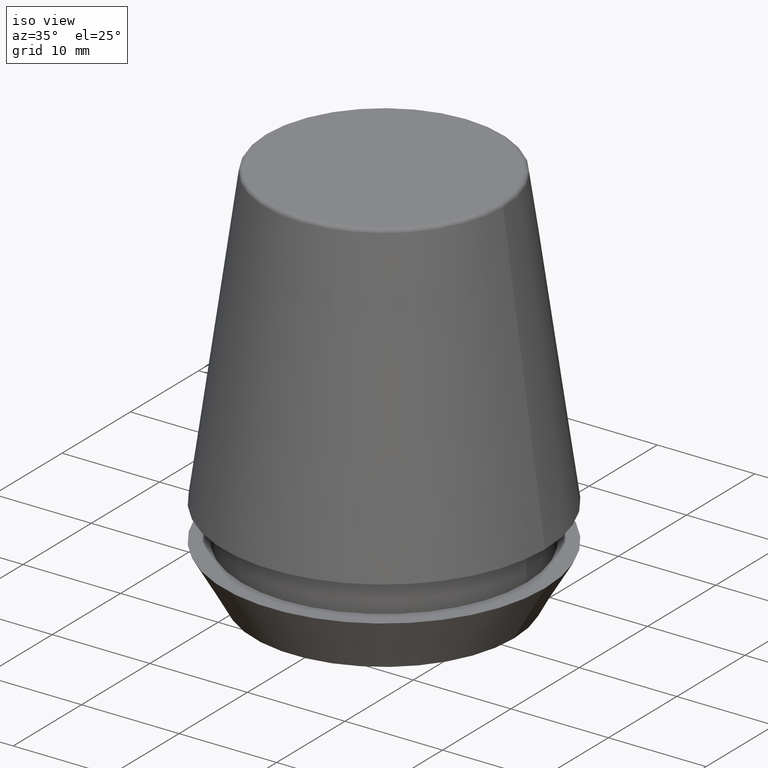
[diagram: clean part render]
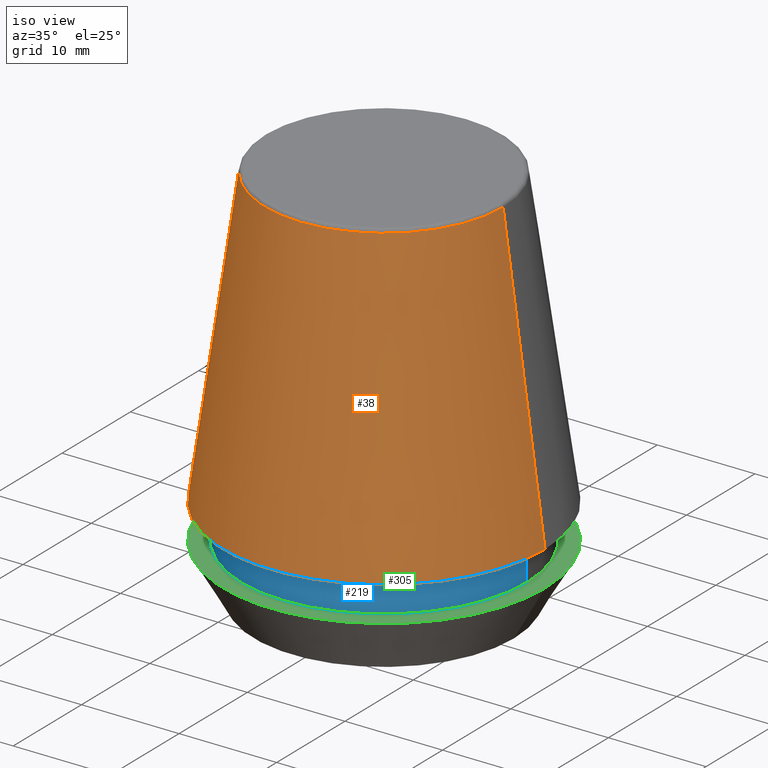
[diagram: same view with three faces highlighted in distinct colors, each labeled with its STEP entity id]
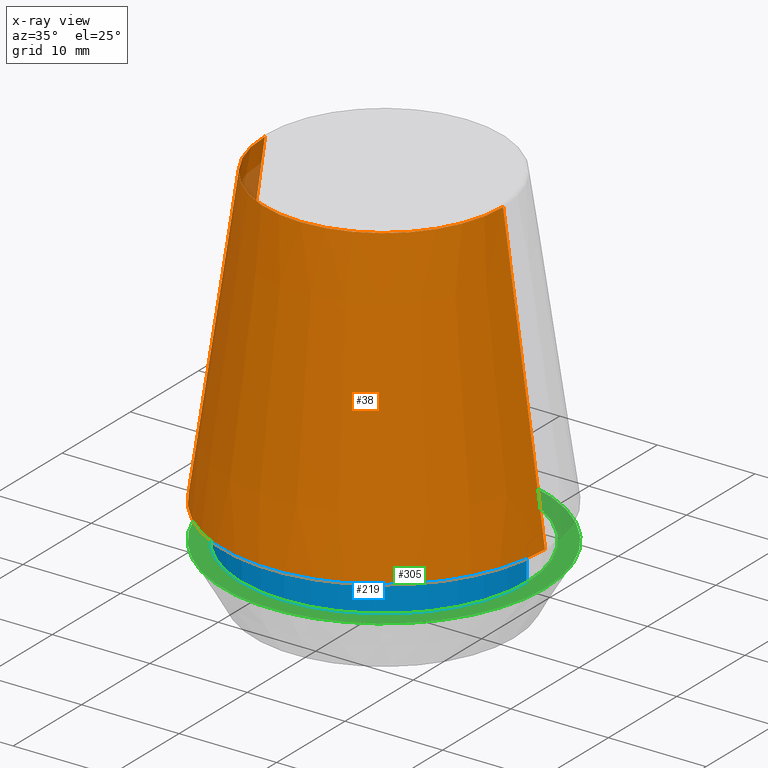
[diagram: x-ray of the same camera — body ghosted, the three highlighted faces saturated]
A machine part, iso view with three faces highlighted in distinct colors.
The next image is the same camera in x-ray (body ghosted, the three faces saturated) — at least one of them is partly hidden behind the body in this view.
Their STEP definitions:

[orange] entity #38 — the highlighted conical surface has half-angle 8 deg.
#8 = ORIENTED_EDGE ( 'NONE', *, *, #48, .T. ) ;
#16 = CIRCLE ( 'NONE', #101, 12.20600611160694300 ) ;
#21 = VERTEX_POINT ( 'NONE', #42 ) ;
#37 = DIRECTION ( 'NONE',  ( 0.0000000000000000000, 0.0000000000000000000, -1.000000000000000000 ) ) ;
#38 = ADVANCED_FACE ( 'NONE', ( #273 ), #384, .T. ) ;
#42 = CARTESIAN_POINT ( 'NONE',  ( -12.20600611160694300, 0.0000000000000000000, 39.65566924038402900 ) ) ;
#48 = EDGE_CURVE ( 'NONE', #278, #261, #56, .T. ) ;
#56 = CIRCLE ( 'NONE', #182, 16.50032537154048700 ) ;
#59 = CARTESIAN_POINT ( 'NONE',  ( 16.50032537154048700, 2.020707065114692300E-015, 9.099999999999997900 ) ) ;
#83 = VECTOR ( 'NONE', #350, 1000.000000000000000 ) ;
#89 = VECTOR ( 'NONE', #154, 1000.000000000000000 ) ;
#94 = CARTESIAN_POINT ( 'NONE',  ( 16.50032537154048700, 2.020707065114692300E-015, 9.099999999999997900 ) ) ;
#100 = LINE ( 'NONE', #251, #83 ) ;
#101 = AXIS2_PLACEMENT_3D ( 'NONE', #102, #234, #344 ) ;
#102 = CARTESIAN_POINT ( 'NONE',  ( 0.0000000000000000000, 0.0000000000000000000, 39.65566924038402900 ) ) ;
#130 = VERTEX_POINT ( 'NONE', #352 ) ;
#154 = DIRECTION ( 'NONE',  ( 0.1391731009600586900, 1.704378926181473100E-017, -0.9902680687415712500 ) ) ;
#182 = AXIS2_PLACEMENT_3D ( 'NONE', #307, #275, #355 ) ;
#190 = DIRECTION ( 'NONE',  ( -1.000000000000000000, 0.0000000000000000000, 0.0000000000000000000 ) ) ;
#196 = LINE ( 'NONE', #94, #89 ) ;
#199 = EDGE_LOOP ( 'NONE', ( #255, #224, #329, #8 ) ) ;
#201 = EDGE_CURVE ( 'NONE', #130, #261, #196, .T. ) ;
#221 = CARTESIAN_POINT ( 'NONE',  ( 0.0000000000000000000, 0.0000000000000000000, 9.099999999999997900 ) ) ;
#224 = ORIENTED_EDGE ( 'NONE', *, *, #258, .F. ) ;
#234 = DIRECTION ( 'NONE',  ( -0.0000000000000000000, -0.0000000000000000000, 1.000000000000000000 ) ) ;
#251 = CARTESIAN_POINT ( 'NONE',  ( -16.50032537154048700, 0.0000000000000000000, 9.099999999999997900 ) ) ;
#253 = AXIS2_PLACEMENT_3D ( 'NONE', #221, #37, #190 ) ;
#255 = ORIENTED_EDGE ( 'NONE', *, *, #201, .F. ) ;
#258 = EDGE_CURVE ( 'NONE', #21, #130, #16, .T. ) ;
#261 = VERTEX_POINT ( 'NONE', #59 ) ;
#273 = FACE_OUTER_BOUND ( 'NONE', #199, .T. ) ;
#275 = DIRECTION ( 'NONE',  ( -0.0000000000000000000, -0.0000000000000000000, 1.000000000000000000 ) ) ;
#278 = VERTEX_POINT ( 'NONE', #311 ) ;
#307 = CARTESIAN_POINT ( 'NONE',  ( 0.0000000000000000000, 0.0000000000000000000, 9.099999999999997900 ) ) ;
#311 = CARTESIAN_POINT ( 'NONE',  ( -16.50032537154048700, 0.0000000000000000000, 9.099999999999997900 ) ) ;
#329 = ORIENTED_EDGE ( 'NONE', *, *, #375, .T. ) ;
#344 = DIRECTION ( 'NONE',  ( 1.000000000000000000, 0.0000000000000000000, 0.0000000000000000000 ) ) ;
#350 = DIRECTION ( 'NONE',  ( -0.1391731009600586900, 0.0000000000000000000, -0.9902680687415712500 ) ) ;
#352 = CARTESIAN_POINT ( 'NONE',  ( 12.20600611160694300, 1.757755848304969800E-015, 39.65566924038402900 ) ) ;
#355 = DIRECTION ( 'NONE',  ( 1.000000000000000000, 0.0000000000000000000, 0.0000000000000000000 ) ) ;
#375 = EDGE_CURVE ( 'NONE', #21, #278, #100, .T. ) ;
#384 = CONICAL_SURFACE ( 'NONE', #253, 16.50032537154048700, 0.1396263401595395900 ) ;

[blue] entity #219 — the highlighted cylindrical surface (partial cylindrical patch) has radius 14.6 mm, axis along (-0, -0, 1).
#10 = VECTOR ( 'NONE', #267, 1000.000000000000000 ) ;
#17 = VECTOR ( 'NONE', #297, 1000.000000000000000 ) ;
#27 = DIRECTION ( 'NONE',  ( 1.000000000000000000, 0.0000000000000000000, 0.0000000000000000000 ) ) ;
#28 = CYLINDRICAL_SURFACE ( 'NONE', #239, 14.60000000000000000 ) ;
#30 = ORIENTED_EDGE ( 'NONE', *, *, #315, .F. ) ;
#31 = AXIS2_PLACEMENT_3D ( 'NONE', #383, #357, #213 ) ;
#32 = CIRCLE ( 'NONE', #362, 14.60000000000000000 ) ;
#36 = ORIENTED_EDGE ( 'NONE', *, *, #172, .T. ) ;
#40 = FACE_OUTER_BOUND ( 'NONE', #132, .T. ) ;
#46 = ORIENTED_EDGE ( 'NONE', *, *, #198, .T. ) ;
#52 = LINE ( 'NONE', #339, #10 ) ;
#63 = CARTESIAN_POINT ( 'NONE',  ( 14.60000000000000000, 0.0000000000000000000, 9.099999999999997900 ) ) ;
#107 = CARTESIAN_POINT ( 'NONE',  ( 14.60000000000000000, 0.0000000000000000000, 5.500000000000005300 ) ) ;
#117 = CIRCLE ( 'NONE', #31, 14.60000000000000000 ) ;
#118 = LINE ( 'NONE', #183, #17 ) ;
#119 = VERTEX_POINT ( 'NONE', #107 ) ;
#121 = VERTEX_POINT ( 'NONE', #242 ) ;
#131 = VERTEX_POINT ( 'NONE', #63 ) ;
#132 = EDGE_LOOP ( 'NONE', ( #30, #36, #46, #289 ) ) ;
#145 = EDGE_CURVE ( 'NONE', #158, #131, #117, .T. ) ;
#147 = CARTESIAN_POINT ( 'NONE',  ( 0.0000000000000000000, 0.0000000000000000000, 101.8074564848000400 ) ) ;
#158 = VERTEX_POINT ( 'NONE', #214 ) ;
#172 = EDGE_CURVE ( 'NONE', #121, #119, #32, .T. ) ;
#179 = DIRECTION ( 'NONE',  ( 1.000000000000000000, 0.0000000000000000000, 0.0000000000000000000 ) ) ;
#183 = CARTESIAN_POINT ( 'NONE',  ( -14.60000000000000000, 1.787984326755135800E-015, 101.8074564848000400 ) ) ;
#198 = EDGE_CURVE ( 'NONE', #119, #131, #52, .T. ) ;
#213 = DIRECTION ( 'NONE',  ( 1.000000000000000000, 0.0000000000000000000, 0.0000000000000000000 ) ) ;
#214 = CARTESIAN_POINT ( 'NONE',  ( -14.60000000000000000, 1.787984326755135800E-015, 9.099999999999997900 ) ) ;
#219 = ADVANCED_FACE ( 'NONE', ( #40 ), #28, .T. ) ;
#238 = DIRECTION ( 'NONE',  ( -0.0000000000000000000, -0.0000000000000000000, 1.000000000000000000 ) ) ;
#239 = AXIS2_PLACEMENT_3D ( 'NONE', #147, #263, #179 ) ;
#242 = CARTESIAN_POINT ( 'NONE',  ( -14.60000000000000000, 1.787984326755135800E-015, 5.500000000000005300 ) ) ;
#259 = CARTESIAN_POINT ( 'NONE',  ( 0.0000000000000000000, 0.0000000000000000000, 5.500000000000005300 ) ) ;
#263 = DIRECTION ( 'NONE',  ( -0.0000000000000000000, -0.0000000000000000000, 1.000000000000000000 ) ) ;
#267 = DIRECTION ( 'NONE',  ( -0.0000000000000000000, -0.0000000000000000000, 1.000000000000000000 ) ) ;
#289 = ORIENTED_EDGE ( 'NONE', *, *, #145, .F. ) ;
#297 = DIRECTION ( 'NONE',  ( -0.0000000000000000000, -0.0000000000000000000, 1.000000000000000000 ) ) ;
#315 = EDGE_CURVE ( 'NONE', #121, #158, #118, .T. ) ;
#339 = CARTESIAN_POINT ( 'NONE',  ( 14.60000000000000000, 0.0000000000000000000, 101.8074564848000400 ) ) ;
#357 = DIRECTION ( 'NONE',  ( -0.0000000000000000000, -0.0000000000000000000, 1.000000000000000000 ) ) ;
#362 = AXIS2_PLACEMENT_3D ( 'NONE', #259, #238, #27 ) ;
#383 = CARTESIAN_POINT ( 'NONE',  ( 0.0000000000000000000, 0.0000000000000000000, 9.099999999999997900 ) ) ;

[green] entity #305 — the highlighted planar face has unit normal (0, 0, -1).
#14 = EDGE_CURVE ( 'NONE', #68, #47, #300, .T. ) ;
#20 = FACE_BOUND ( 'NONE', #74, .T. ) ;
#27 = DIRECTION ( 'NONE',  ( 1.000000000000000000, 0.0000000000000000000, 0.0000000000000000000 ) ) ;
#32 = CIRCLE ( 'NONE', #362, 14.60000000000000000 ) ;
#34 = CARTESIAN_POINT ( 'NONE',  ( -16.50000000000000000, 2.020667218593133100E-015, 5.500000000000005300 ) ) ;
#47 = VERTEX_POINT ( 'NONE', #133 ) ;
#57 = DIRECTION ( 'NONE',  ( -1.000000000000000000, 0.0000000000000000000, -0.0000000000000000000 ) ) ;
#68 = VERTEX_POINT ( 'NONE', #34 ) ;
#74 = EDGE_LOOP ( 'NONE', ( #193, #82 ) ) ;
#82 = ORIENTED_EDGE ( 'NONE', *, *, #172, .F. ) ;
#90 = DIRECTION ( 'NONE',  ( 1.000000000000000000, 0.0000000000000000000, 0.0000000000000000000 ) ) ;
#99 = CARTESIAN_POINT ( 'NONE',  ( 0.0000000000000000000, 0.0000000000000000000, 5.500000000000005300 ) ) ;
#104 = AXIS2_PLACEMENT_3D ( 'NONE', #99, #321, #90 ) ;
#107 = CARTESIAN_POINT ( 'NONE',  ( 14.60000000000000000, 0.0000000000000000000, 5.500000000000005300 ) ) ;
#119 = VERTEX_POINT ( 'NONE', #107 ) ;
#121 = VERTEX_POINT ( 'NONE', #242 ) ;
#133 = CARTESIAN_POINT ( 'NONE',  ( 16.50000000000000000, 0.0000000000000000000, 5.500000000000005300 ) ) ;
#135 = CARTESIAN_POINT ( 'NONE',  ( 0.0000000000000000000, 0.0000000000000000000, 5.500000000000005300 ) ) ;
#143 = AXIS2_PLACEMENT_3D ( 'NONE', #343, #346, #57 ) ;
#163 = DIRECTION ( 'NONE',  ( -0.0000000000000000000, -0.0000000000000000000, 1.000000000000000000 ) ) ;
#169 = EDGE_LOOP ( 'NONE', ( #180, #181 ) ) ;
#172 = EDGE_CURVE ( 'NONE', #121, #119, #32, .T. ) ;
#176 = PLANE ( 'NONE',  #143 ) ;
#180 = ORIENTED_EDGE ( 'NONE', *, *, #235, .T. ) ;
#181 = ORIENTED_EDGE ( 'NONE', *, *, #14, .T. ) ;
#193 = ORIENTED_EDGE ( 'NONE', *, *, #248, .F. ) ;
#227 = CIRCLE ( 'NONE', #229, 16.50000000000000000 ) ;
#229 = AXIS2_PLACEMENT_3D ( 'NONE', #286, #290, #260 ) ;
#235 = EDGE_CURVE ( 'NONE', #47, #68, #227, .T. ) ;
#238 = DIRECTION ( 'NONE',  ( -0.0000000000000000000, -0.0000000000000000000, 1.000000000000000000 ) ) ;
#242 = CARTESIAN_POINT ( 'NONE',  ( -14.60000000000000000, 1.787984326755135800E-015, 5.500000000000005300 ) ) ;
#248 = EDGE_CURVE ( 'NONE', #119, #121, #264, .T. ) ;
#259 = CARTESIAN_POINT ( 'NONE',  ( 0.0000000000000000000, 0.0000000000000000000, 5.500000000000005300 ) ) ;
#260 = DIRECTION ( 'NONE',  ( 1.000000000000000000, 0.0000000000000000000, 0.0000000000000000000 ) ) ;
#264 = CIRCLE ( 'NONE', #104, 14.60000000000000000 ) ;
#286 = CARTESIAN_POINT ( 'NONE',  ( 0.0000000000000000000, 0.0000000000000000000, 5.500000000000005300 ) ) ;
#290 = DIRECTION ( 'NONE',  ( -0.0000000000000000000, -0.0000000000000000000, 1.000000000000000000 ) ) ;
#292 = AXIS2_PLACEMENT_3D ( 'NONE', #135, #163, #309 ) ;
#300 = CIRCLE ( 'NONE', #292, 16.50000000000000000 ) ;
#305 = ADVANCED_FACE ( 'NONE', ( #20, #379 ), #176, .F. ) ;
#309 = DIRECTION ( 'NONE',  ( 1.000000000000000000, 0.0000000000000000000, 0.0000000000000000000 ) ) ;
#321 = DIRECTION ( 'NONE',  ( -0.0000000000000000000, -0.0000000000000000000, 1.000000000000000000 ) ) ;
#343 = CARTESIAN_POINT ( 'NONE',  ( 0.0000000000000000000, 16.50000000000000000, 5.500000000000002700 ) ) ;
#346 = DIRECTION ( 'NONE',  ( 0.0000000000000000000, 0.0000000000000000000, -1.000000000000000000 ) ) ;
#362 = AXIS2_PLACEMENT_3D ( 'NONE', #259, #238, #27 ) ;
#379 = FACE_OUTER_BOUND ( 'NONE', #169, .T. ) ;